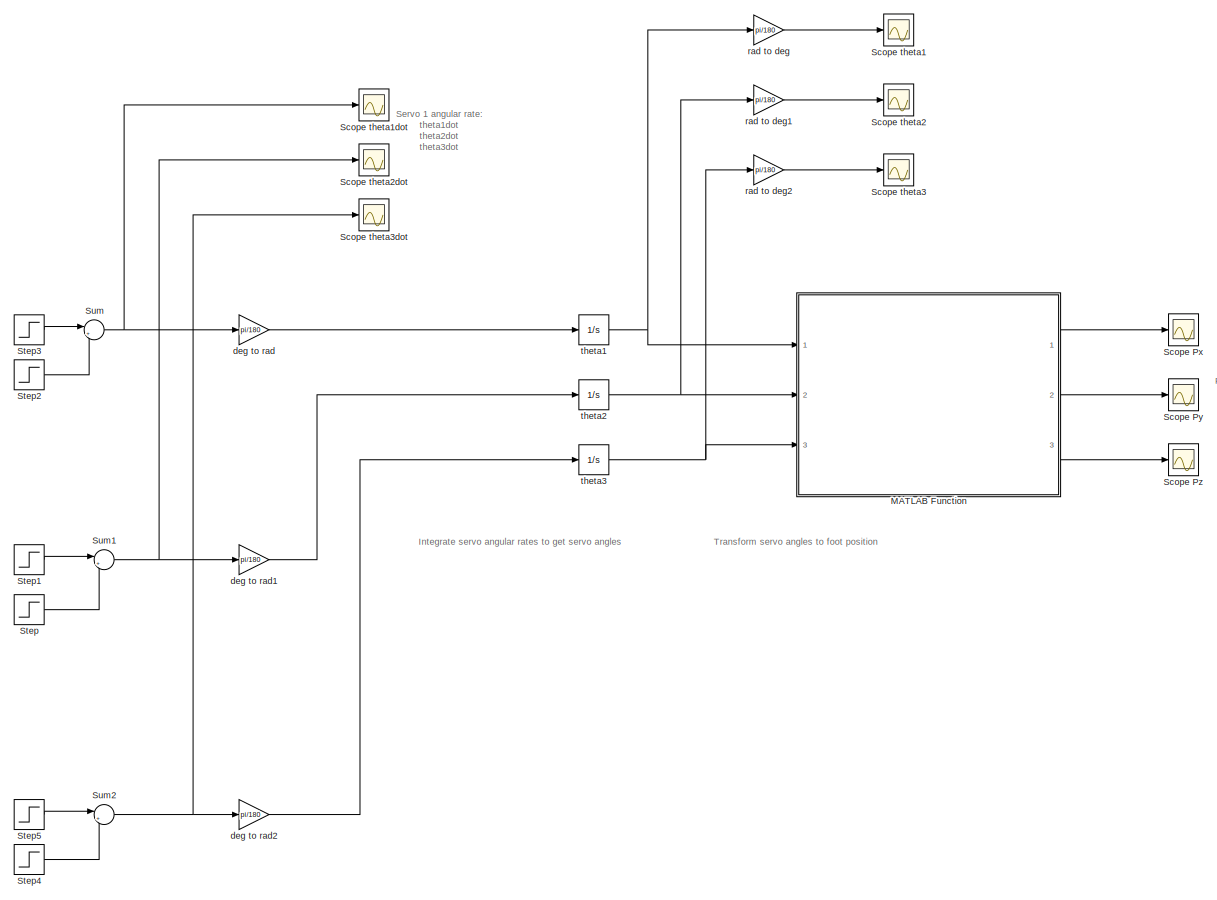
[diagram: root canvas - part 1/3, most of the canvas]
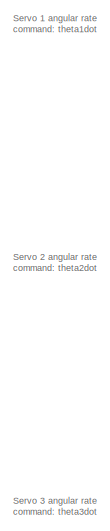
[diagram: root canvas - part 2/3, middle left region]
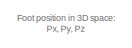
[diagram: root canvas - part 3/3, middle right region]
MODEL slx_1ed9976d529f
KIND model
CONFIG AbsTol = auto
CONFIG EnableMultiTasking = off
CONFIG FixedStep = auto
CONFIG MaxStep = auto
CONFIG MinStep = auto
CONFIG RelTol = 1e-3
CONFIG SampleTimeConstraint = Unconstrained
CONFIG Solver = VariableStepAuto
CONFIG SolverName = VariableStepAuto
CONFIG StartTime = 0.0
CONFIG StopTime = 10.0
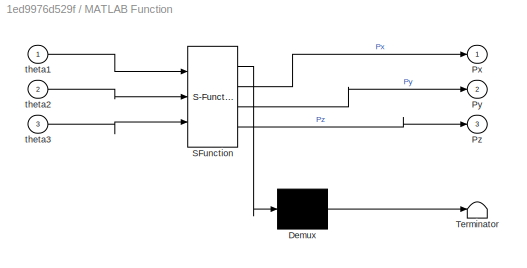
BLOCK [SubSystem] MATLAB Function
  ErrorFcn = Stateflow.Translate.translate
  PermitHierarchicalResolution = ExplicitOnly
  Ports = [3, 3]
  RequestExecContextInheritance = off
  SFBlockType = MATLAB Function
  TreatAsAtomicUnit = on
BLOCK [Demux] MATLAB Function/ Demux 
  Outputs = 1
  Ports = [1, 1]
BLOCK [S-Function] MATLAB Function/ SFunction 
  EnableBusSupport = on
  FunctionName = sf_sfun
  PortCounts = [3 4]
  Ports = [3, 4]
  SFcnIsStateOwnerBlock = off
  SFunctionDeploymentMode = off
  Tag = Stateflow S-Function 2
BLOCK [Terminator] MATLAB Function/ Terminator 
BLOCK [Outport] MATLAB Function/Px
BLOCK [Outport] MATLAB Function/Py
  Port = 2
BLOCK [Outport] MATLAB Function/Pz
  Port = 3
BLOCK [Inport] MATLAB Function/theta1
BLOCK [Inport] MATLAB Function/theta2
  Port = 2
BLOCK [Inport] MATLAB Function/theta3
  Port = 3
BLOCK [Scope] Scope Px
  Floating = off
  NumInputPorts = 1
  Ports = [1]
  ScopeSpecificationString = Simulink.scopes.TimeScopeBlockCfg('CurrentConfiguration', extmgr.ConfigurationSet(extmgr.Configuration('Core','General UI',true),extmgr.Configuration('Core','Source UI',true),extmgr.Configuration('Sources','WiredSimulink',true,'DataLoggingVariableName','ScopeData6'),extmgr.Configuration('Visuals','Time Domain',true,'SerializedDisplays',{struct('MinYLimReal','10.812','MaxYLimReal','11.02089','YLabe...<+1375ch>
BLOCK [Scope] Scope Py
  Floating = off
  NumInputPorts = 1
  Ports = [1]
  ScopeSpecificationString = Simulink.scopes.TimeScopeBlockCfg('CurrentConfiguration', extmgr.ConfigurationSet(extmgr.Configuration('Core','General UI',true),extmgr.Configuration('Core','Source UI',true),extmgr.Configuration('Sources','WiredSimulink',true,'DataLoggingVariableName','ScopeData7'),extmgr.Configuration('Visuals','Time Domain',true,'SerializedDisplays',{struct('MinYLimReal','-0.23877','MaxYLimReal','2.1489','YLabe...<+1403ch>
BLOCK [Scope] Scope Pz
  Floating = off
  NumInputPorts = 1
  Ports = [1]
  ScopeSpecificationString = Simulink.scopes.TimeScopeBlockCfg('CurrentConfiguration', extmgr.ConfigurationSet(extmgr.Configuration('Core','General UI',true),extmgr.Configuration('Core','Source UI',true),extmgr.Configuration('Sources','WiredSimulink',true,'DataLoggingVariableName','ScopeData8'),extmgr.Configuration('Visuals','Time Domain',true,'SerializedDisplays',{struct('MinYLimReal','0.9','MaxYLimReal','1.1','YLabelReal','...<+1343ch>
BLOCK [Scope] Scope theta1
  Floating = off
  NumInputPorts = 1
  Ports = [1]
  ScopeSpecificationString = Simulink.scopes.TimeScopeBlockCfg('CurrentConfiguration', extmgr.ConfigurationSet(extmgr.Configuration('Core','General UI',true),extmgr.Configuration('Core','Source UI',true),extmgr.Configuration('Sources','WiredSimulink',true,'DataLoggingVariableName','ScopeData3'),extmgr.Configuration('Visuals','Time Domain',true,'SerializedDisplays',{struct('MinYLimReal','-0.00038','MaxYLimReal','0.00343','YLab...<+1369ch>
BLOCK [Scope] Scope theta1dot
  Floating = off
  NumInputPorts = 1
  Ports = [1]
  ScopeSpecificationString = Simulink.scopes.TimeScopeBlockCfg('CurrentConfiguration', extmgr.ConfigurationSet(extmgr.Configuration('Core','General UI',true),extmgr.Configuration('Core','Source UI',true),extmgr.Configuration('Sources','WiredSimulink',true),extmgr.Configuration('Visuals','Time Domain',true,'SerializedDisplays',{struct('MinYLimReal','-1.25','MaxYLimReal','11.25','YLabelReal','','MinYLimMag','0.00000','MaxYLimMa...<+1309ch>
BLOCK [Scope] Scope theta2
  Floating = off
  NumInputPorts = 1
  Ports = [1]
  ScopeSpecificationString = Simulink.scopes.TimeScopeBlockCfg('CurrentConfiguration', extmgr.ConfigurationSet(extmgr.Configuration('Core','General UI',true),extmgr.Configuration('Core','Source UI',true),extmgr.Configuration('Sources','WiredSimulink',true,'DataLoggingVariableName','ScopeData4'),extmgr.Configuration('Visuals','Time Domain',true),extmgr.Configuration('Tools','Plot Navigation',true),extmgr.Configuration('Tools',...<+40ch>
BLOCK [Scope] Scope theta2dot
  Floating = off
  NumInputPorts = 1
  Ports = [1]
  ScopeSpecificationString = Simulink.scopes.TimeScopeBlockCfg('CurrentConfiguration', extmgr.ConfigurationSet(extmgr.Configuration('Core','General UI',true),extmgr.Configuration('Core','Source UI',true),extmgr.Configuration('Sources','WiredSimulink',true,'DataLoggingVariableName','ScopeData1'),extmgr.Configuration('Visuals','Time Domain',true,'SerializedDisplays',{struct('MinYLimReal','-1.00000','MaxYLimReal','1.00000','YLab...<+1363ch>
BLOCK [Scope] Scope theta3
  Floating = off
  NumInputPorts = 1
  Ports = [1]
  ScopeSpecificationString = Simulink.scopes.TimeScopeBlockCfg('CurrentConfiguration', extmgr.ConfigurationSet(extmgr.Configuration('Core','General UI',true),extmgr.Configuration('Core','Source UI',true),extmgr.Configuration('Sources','WiredSimulink',true,'DataLoggingVariableName','ScopeData5'),extmgr.Configuration('Visuals','Time Domain',true),extmgr.Configuration('Tools','Plot Navigation',true),extmgr.Configuration('Tools',...<+40ch>
BLOCK [Scope] Scope theta3dot
  Floating = off
  NumInputPorts = 1
  Ports = [1]
  ScopeSpecificationString = Simulink.scopes.TimeScopeBlockCfg('CurrentConfiguration', extmgr.ConfigurationSet(extmgr.Configuration('Core','General UI',true),extmgr.Configuration('Core','Source UI',true),extmgr.Configuration('Sources','WiredSimulink',true,'DataLoggingVariableName','ScopeData2'),extmgr.Configuration('Visuals','Time Domain',true),extmgr.Configuration('Tools','Plot Navigation',true),extmgr.Configuration('Tools',...<+40ch>
BLOCK [Step] Step
  SampleTime = 0
BLOCK [Step] Step1
  SampleTime = 0
BLOCK [Step] Step2
  After = 10
  SampleTime = 0
  Time = 2
BLOCK [Step] Step3
  After = 10
  SampleTime = 0
BLOCK [Step] Step4
  SampleTime = 0
BLOCK [Step] Step5
  SampleTime = 0
BLOCK [Sum] Sum
  Inputs = |+-
  Ports = [2, 1]
BLOCK [Sum] Sum1
  Inputs = |+-
  Ports = [2, 1]
BLOCK [Sum] Sum2
  Inputs = |+-
  Ports = [2, 1]
BLOCK [Gain] deg to rad
  Gain = pi/180
BLOCK [Gain] deg to rad1
  Gain = pi/180
BLOCK [Gain] deg to rad2
  Gain = pi/180
BLOCK [Gain] rad to deg
  Gain = pi/180
BLOCK [Gain] rad to deg1
  Gain = pi/180
BLOCK [Gain] rad to deg2
  Gain = pi/180
BLOCK [Integrator] theta1
  Ports = [1, 1]
BLOCK [Integrator] theta2
  Ports = [1, 1]
BLOCK [Integrator] theta3
  Ports = [1, 1]
ANNOTATION (root): Foot position in 3D space: Px, Py, Pz
ANNOTATION (root): Integrate servo angular rates to get servo angles
ANNOTATION (root): Servo 1 angular rate: theta1dot theta2dot theta3dot
ANNOTATION (root): Servo 1 angular rate command: theta1dot
ANNOTATION (root): Servo 2 angular rate command: theta2dot
ANNOTATION (root): Servo 3 angular rate command: theta3dot
ANNOTATION (root): Transform servo angles to foot position
LINE MATLAB Function:1 -> Scope Px:1
LINE MATLAB Function:2 -> Scope Py:1
LINE MATLAB Function:3 -> Scope Pz:1
LINE Step1:1 -> Sum1:1
LINE Step2:1 -> Sum:2
LINE Step3:1 -> Sum:1
LINE Step4:1 -> Sum2:2
LINE Step5:1 -> Sum2:1
LINE Step:1 -> Sum1:2
NET Sum1:1 -> Scope theta2dot:1, deg to rad1:1
NET Sum2:1 -> Scope theta3dot:1, deg to rad2:1
NET Sum:1 -> Scope theta1dot:1, deg to rad:1
LINE deg to rad1:1 -> theta2:1
LINE deg to rad2:1 -> theta3:1
LINE deg to rad:1 -> theta1:1
LINE rad to deg1:1 -> Scope theta2:1
LINE rad to deg2:1 -> Scope theta3:1
LINE rad to deg:1 -> Scope theta1:1
NET theta1:1 -> MATLAB Function:1, rad to deg:1
NET theta2:1 -> MATLAB Function:2, rad to deg1:1
NET theta3:1 -> MATLAB Function:3, rad to deg2:1
note: NET lines group one-source signal fan-out (src -> all destinations, sorted); 1:1 wires keep LINE
CHART MATLAB Function states=1 transitions=1
  STATE_LABEL 'eML_blk_kernel()'
  STATE_LABEL 'SCRIPT:\nfunction [Px,Py,Pz] = fcn(theta1,theta2,theta3)\n\n    % degrees to radians\n    d2r = pi/180;\n\n    % Link lengths as defined in Figure 5.3\n    L1x = 2;\n    L1z = 1;\n    L2  = 4;\n    L3  = 5;\n\n    % Transformation from servo angles to end effector positions as given in\n    % Equation 5.30\n    C1  = cos(theta1);\n    S1  = sin(theta1);\n    C2  = cos(theta2);\n    S2  = sin(theta2);\n    C23 = cos...<+313ch>'
CHART  states=0 transitions=0
